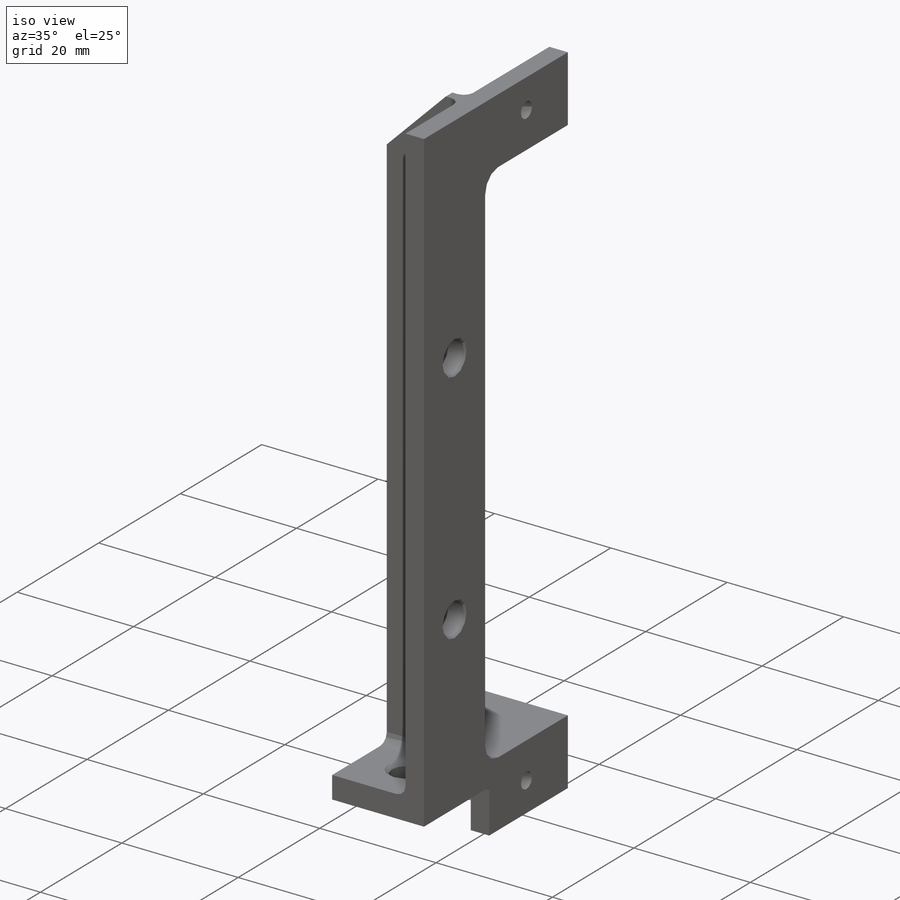
[diagram: iso view]
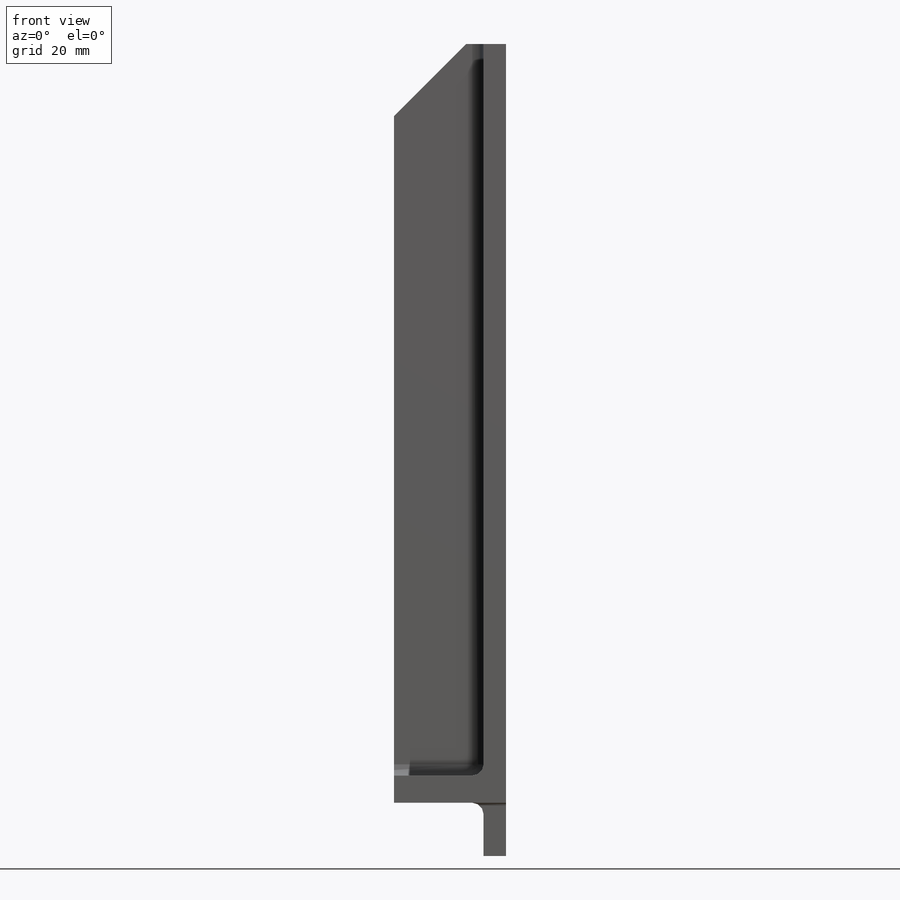
[diagram: front view]
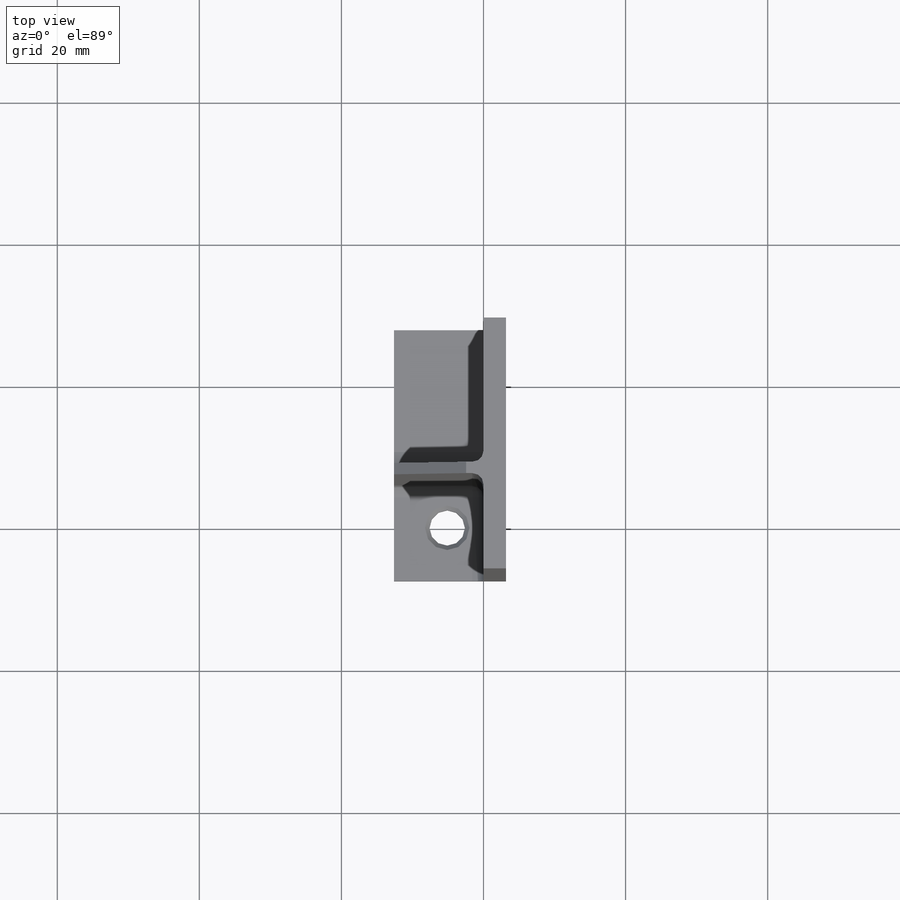
[diagram: top view]
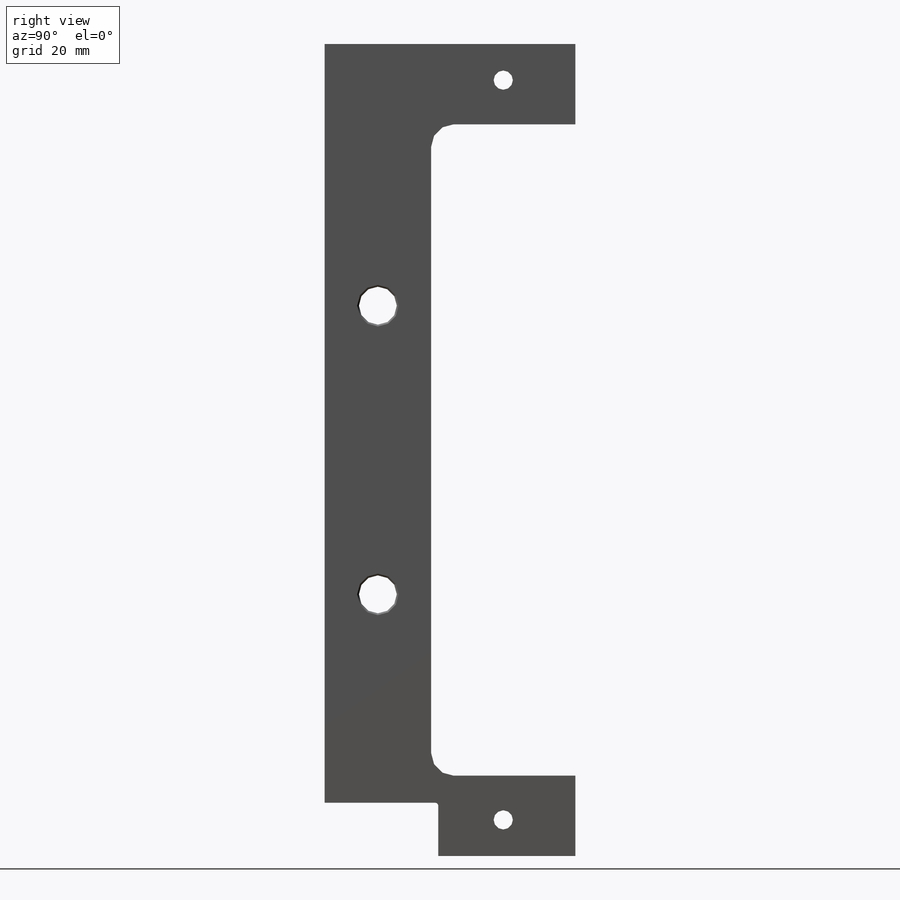
[diagram: right view]
SOLIDWORKS PART (.sldprt)
format: sldprt  version: not decoded by parser v0  size: 320,000 bytes
history: native  units: mm
features: sketch x10, fillet x4, extrude x2, hole x2, cut_extrude x2, mirror x2, material x1, thread x1, chamfer x1 (+11 scaffold rows collapsed)
feature tree (36):
  scaffold x11  (default folders/planes/origin — collapsed)
  material  "6061-T6 (SS)"
  sketch  "Sketch1"  dims[D1=3.81mm D2=114.3mm D3=15.0mm D4=49.658mm D5=27.813mm D6=16.0mm]
  extrude  "Boss-Extrude1"  Depth=3.175mm
  sketch  "Sketch2"  dims[D1=1.5875mm]
  extrude  "Boss-Extrude2"  Depth=15.78232mm
  sketch  "Sketch3"  dims[D1=~8.28294mm]
  hole  "#10 Clearance Hole1"  Diameter=4.9784mm Depth=3.81mm
  sketch  "Sketch5"
  sketch  "Sketch4"  dims[hole-wizard template sketch: 46 standard entries collapsed; hole parameters kept: c15.Thru Hole Dia.=4.9784mm c15.Thru Hole Depth=3.81mm c15.Near C'Sink Dia.=6.2484mm c15.D4=~3.666174mm c15.Near C'Sink Angle=90.0deg c15.Far C'Sink Dia.=6.2484mm c15.D6=~9.919017mm c15.Far C'Sink Angle=90.0deg]
  fillet  "Fillet1"  Radius=1.5875mm
  fillet  "Fillet2"  Radius=3.175mm
  sketch  "Sketch6"  dims[D1=10.16mm]
  cut_extrude  "Cut-Extrude1"  [1 undecoded]
  sketch  "Sketch7"  dims[D1=52.07mm D2=10.16mm]
  hole  "#6-32 Tapped Hole1"  Diameter=2.7051mm Depth=15.78232mm
  sketch  "Sketch9"
  sketch  "Sketch8"  dims[hole-wizard template sketch: 60 standard entries collapsed; hole parameters kept: c18.Thru Tap Drill Depth=~15.78232mm]
  thread  "Hole Thread1"  Diameter=3.5052mm  [1 undecoded]
  sketch  "Sketch10"  dims[D1=5.334mm D2=20.32mm D3=0.7874mm]
  cut_extrude  "Cut-Extrude2"  [1 undecoded]
  mirror  "Mirror2"
  chamfer  "Chamfer1"  Distance=0.254mm Angle=45deg
  fillet  "Fillet3"  Radius=1.5875mm
  mirror  "Mirror1"
  fillet  "Fillet4"  Radius=0.39624mm
decode coverage: 18 of 24 modeling features carry decoded parameters
note: ~ marks probable driven/reference dimensions
note: 3 parameter values undecoded
note: suppression state not decoded; provenance and decode notes live in map.json
